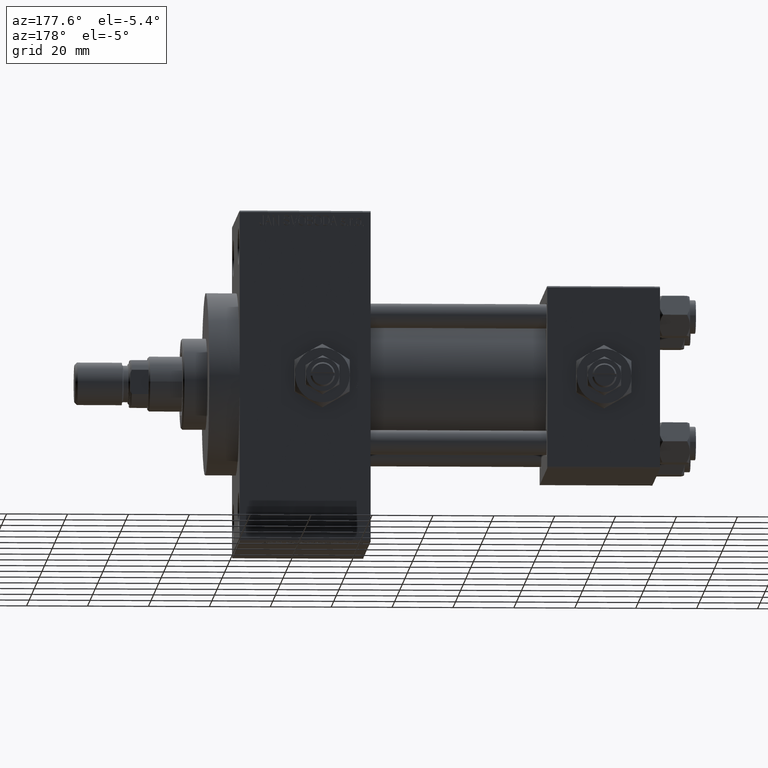
[diagram: clean part render]
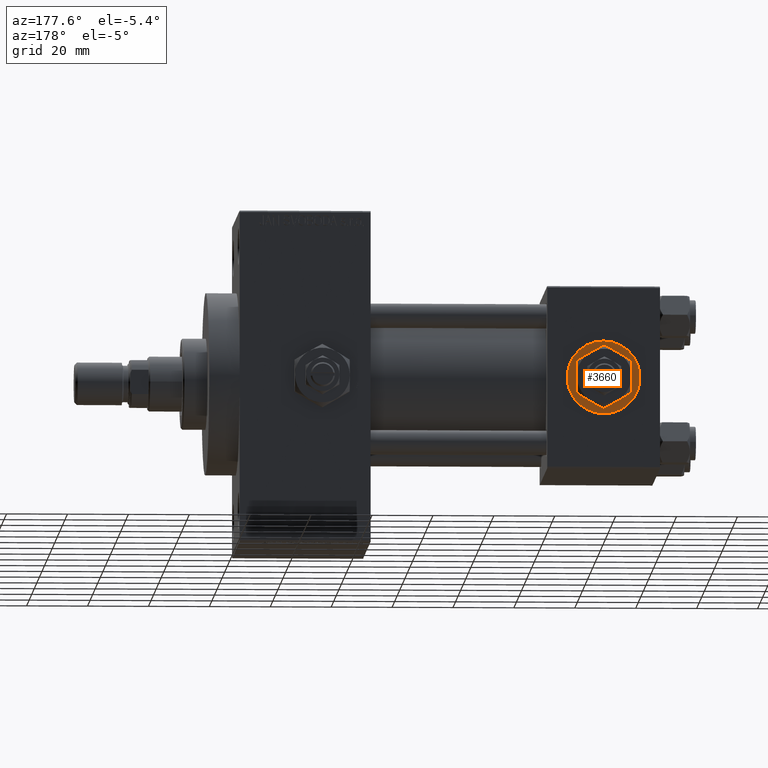
[diagram: same view with one face highlighted and labeled with its STEP entity id]
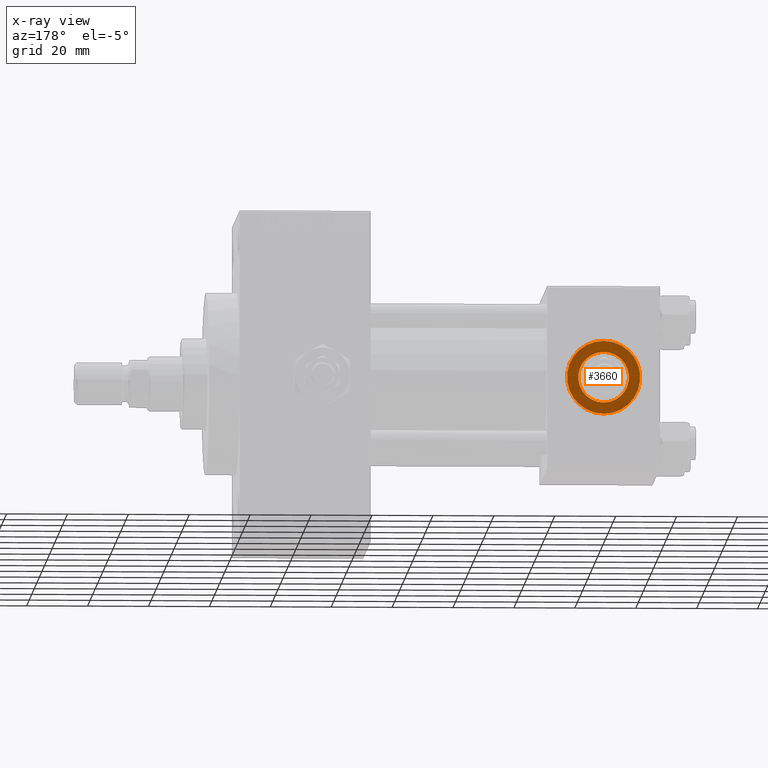
[diagram: x-ray of the same camera — body ghosted, the highlighted face saturated]
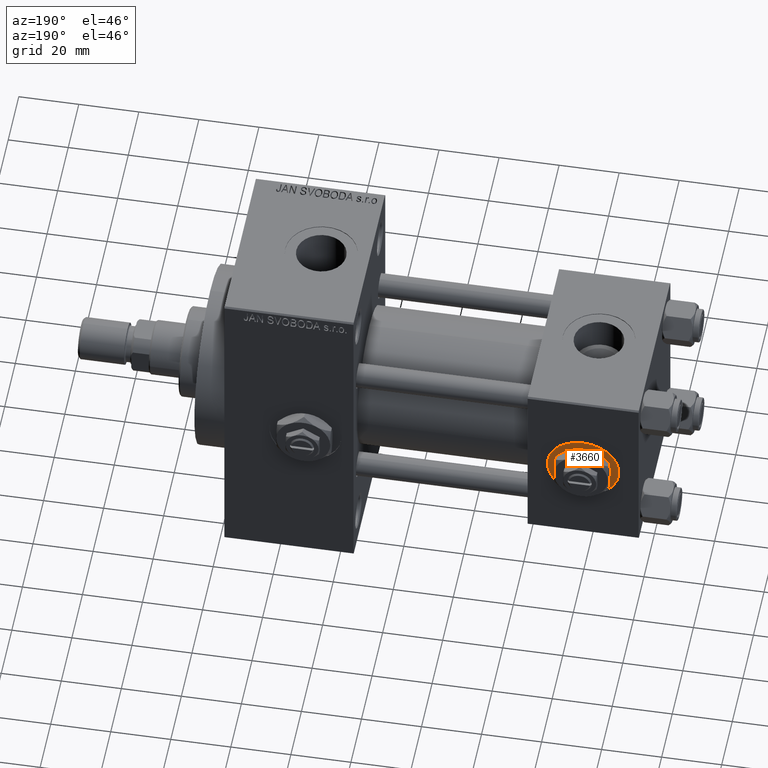
[diagram: same view with one face highlighted and labeled with its STEP entity id]
A machine part, auxiliary view. The second image highlights one B-rep face of the part: STEP entity #3660.
The next image is the same camera in x-ray: the body ghosted, the highlighted face saturated — about 0% of this face is hidden behind the body in this view.
A second angle (auxiliary view) of the same face is appended — the face is thin or edge-on in the first view.
In plain terms, the highlighted planar face has unit normal (0, 1, 0).
Its self-contained STEP definition (entity closure, byte-faithful):
#796 = DIRECTION ( 'NONE',  ( 0.000000000000000000, 0.000000000000000000, 1.000000000000000000 ) ) ;
#2403 = AXIS2_PLACEMENT_3D ( 'NONE', #7895, #31023, #46634 ) ;
#3660 = ADVANCED_FACE ( 'NONE', ( #8641, #4608 ), #4107, .T. ) ;
#4107 = PLANE ( 'NONE',  #2403 ) ;
#4367 = VERTEX_POINT ( 'NONE', #24282 ) ;
#4388 = DIRECTION ( 'NONE',  ( 0.000000000000000000, 1.000000000000000000, 0.000000000000000000 ) ) ;
#4608 = FACE_OUTER_BOUND ( 'NONE', #38345, .T. ) ;
#5225 = ORIENTED_EDGE ( 'NONE', *, *, #19286, .T. ) ;
#5936 = AXIS2_PLACEMENT_3D ( 'NONE', #38873, #4388, #19720 ) ;
#7895 = CARTESIAN_POINT ( 'NONE',  ( 18.50000000000000000, 29.79999999999999361, 0.000000000000000000 ) ) ;
#7953 = DIRECTION ( 'NONE',  ( 0.000000000000000000, 1.000000000000000000, 0.000000000000000000 ) ) ;
#8641 = FACE_BOUND ( 'NONE', #37482, .T. ) ;
#9099 = CARTESIAN_POINT ( 'NONE',  ( 18.50000000000000000, 29.79999999999999361, 0.000000000000000000 ) ) ;
#9358 = CARTESIAN_POINT ( 'NONE',  ( 18.50000000000000000, 29.79999999999999361, 0.000000000000000000 ) ) ;
#9600 = DIRECTION ( 'NONE',  ( 0.000000000000000000, 1.000000000000000000, 0.000000000000000000 ) ) ;
#11200 = VERTEX_POINT ( 'NONE', #32017 ) ;
#14583 = EDGE_CURVE ( 'NONE', #4367, #33517, #21808, .T. ) ;
#15470 = CARTESIAN_POINT ( 'NONE',  ( 18.50000000000000000, 29.79999999999999361, 0.000000000000000000 ) ) ;
#18575 = ORIENTED_EDGE ( 'NONE', *, *, #19628, .F. ) ;
#18819 = VERTEX_POINT ( 'NONE', #27132 ) ;
#19286 = EDGE_CURVE ( 'NONE', #33517, #4367, #31644, .T. ) ;
#19628 = EDGE_CURVE ( 'NONE', #11200, #18819, #42102, .T. ) ;
#19720 = DIRECTION ( 'NONE',  ( 0.000000000000000000, 0.000000000000000000, 1.000000000000000000 ) ) ;
#20382 = AXIS2_PLACEMENT_3D ( 'NONE', #9099, #33159, #796 ) ;
#21808 = CIRCLE ( 'NONE', #42761, 12.00000000000000178 ) ;
#22594 = ORIENTED_EDGE ( 'NONE', *, *, #28103, .F. ) ;
#23261 = DIRECTION ( 'NONE',  ( 0.000000000000000000, 0.000000000000000000, 1.000000000000000000 ) ) ;
#24282 = CARTESIAN_POINT ( 'NONE',  ( 18.50000000000000000, 29.79999999999999361, 12.00000000000000178 ) ) ;
#24578 = AXIS2_PLACEMENT_3D ( 'NONE', #9358, #9600, #44580 ) ;
#27132 = CARTESIAN_POINT ( 'NONE',  ( 18.50000000000000000, 29.79999999999999361, -8.330000000000001847 ) ) ;
#28103 = EDGE_CURVE ( 'NONE', #18819, #11200, #43115, .T. ) ;
#30616 = CARTESIAN_POINT ( 'NONE',  ( 18.50000000000000000, 29.79999999999999361, -12.00000000000000178 ) ) ;
#31023 = DIRECTION ( 'NONE',  ( 0.000000000000000000, 1.000000000000000000, 0.000000000000000000 ) ) ;
#31644 = CIRCLE ( 'NONE', #5936, 12.00000000000000178 ) ;
#32017 = CARTESIAN_POINT ( 'NONE',  ( 18.50000000000000000, 29.79999999999999361, 8.330000000000001847 ) ) ;
#32210 = ORIENTED_EDGE ( 'NONE', *, *, #14583, .T. ) ;
#33159 = DIRECTION ( 'NONE',  ( 0.000000000000000000, 1.000000000000000000, 0.000000000000000000 ) ) ;
#33517 = VERTEX_POINT ( 'NONE', #30616 ) ;
#37482 = EDGE_LOOP ( 'NONE', ( #18575, #22594 ) ) ;
#38345 = EDGE_LOOP ( 'NONE', ( #32210, #5225 ) ) ;
#38873 = CARTESIAN_POINT ( 'NONE',  ( 18.50000000000000000, 29.79999999999999361, 0.000000000000000000 ) ) ;
#42102 = CIRCLE ( 'NONE', #20382, 8.330000000000001847 ) ;
#42761 = AXIS2_PLACEMENT_3D ( 'NONE', #15470, #7953, #23261 ) ;
#43115 = CIRCLE ( 'NONE', #24578, 8.330000000000001847 ) ;
#44580 = DIRECTION ( 'NONE',  ( 0.000000000000000000, 0.000000000000000000, 1.000000000000000000 ) ) ;
#46634 = DIRECTION ( 'NONE',  ( 0.000000000000000000, -0.000000000000000000, 1.000000000000000000 ) ) ;